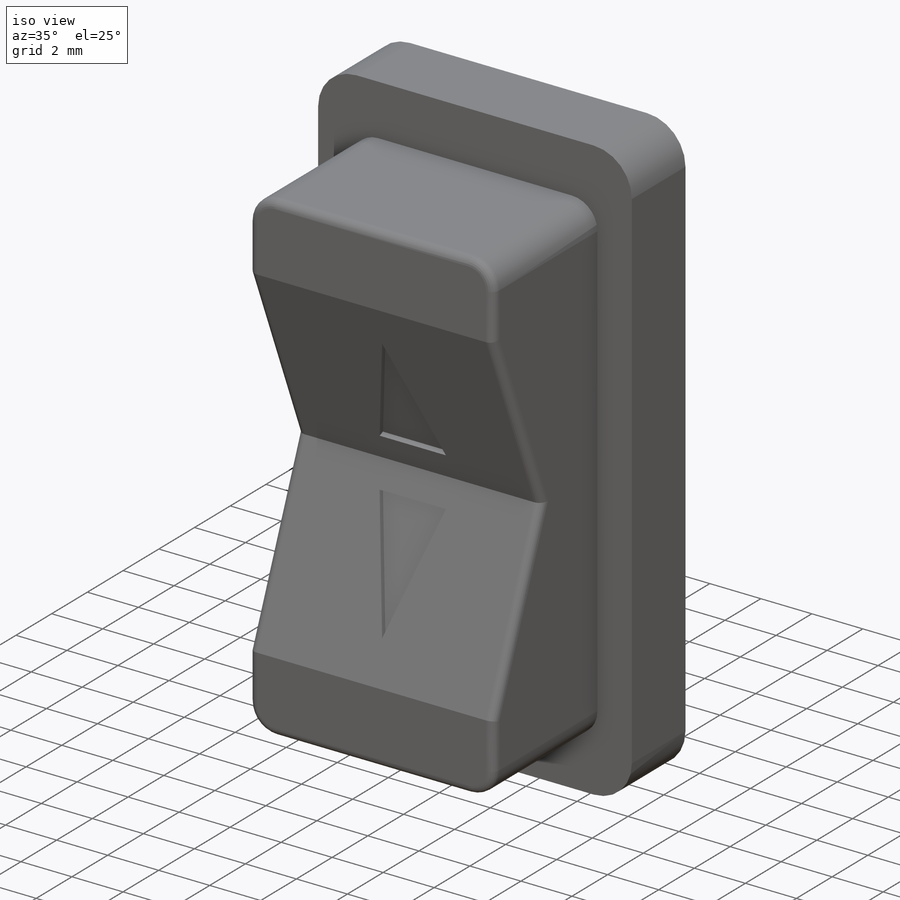
[diagram: iso view]
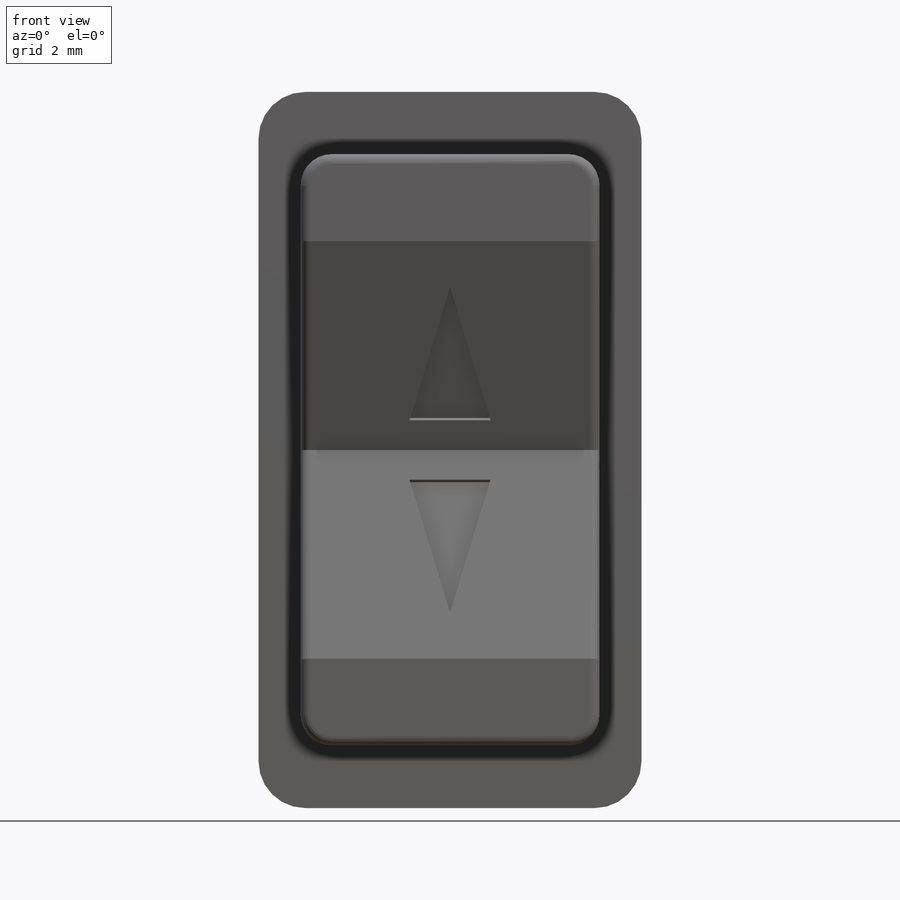
[diagram: front view]
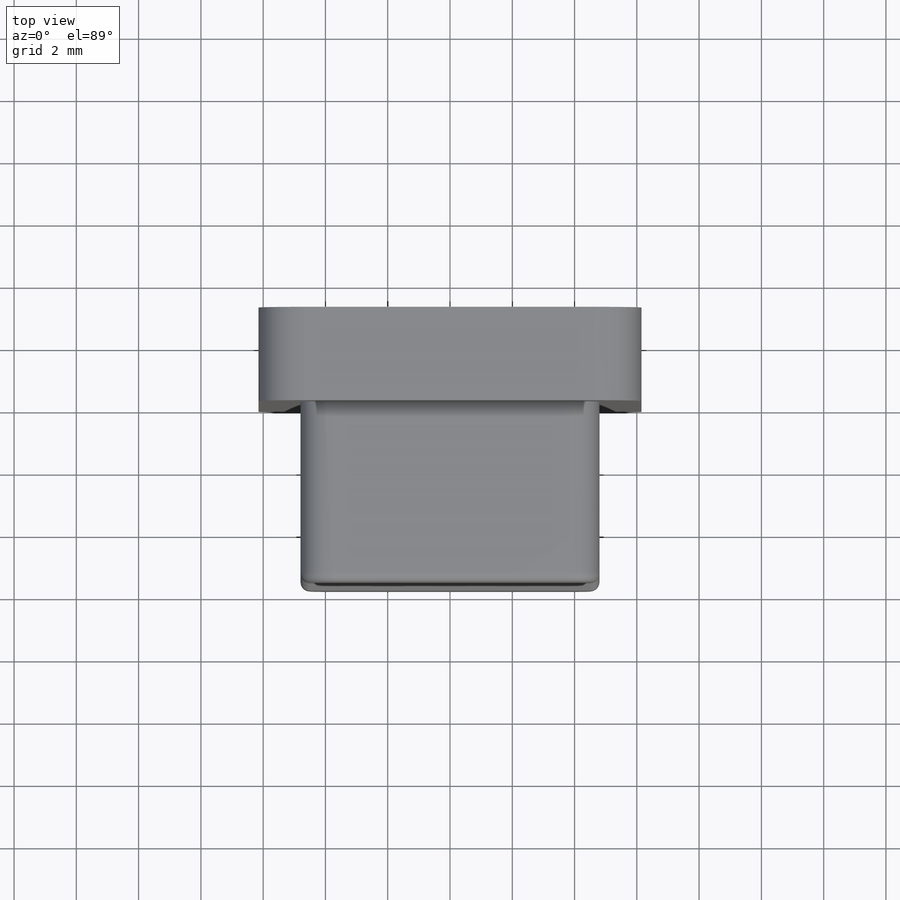
[diagram: top view]
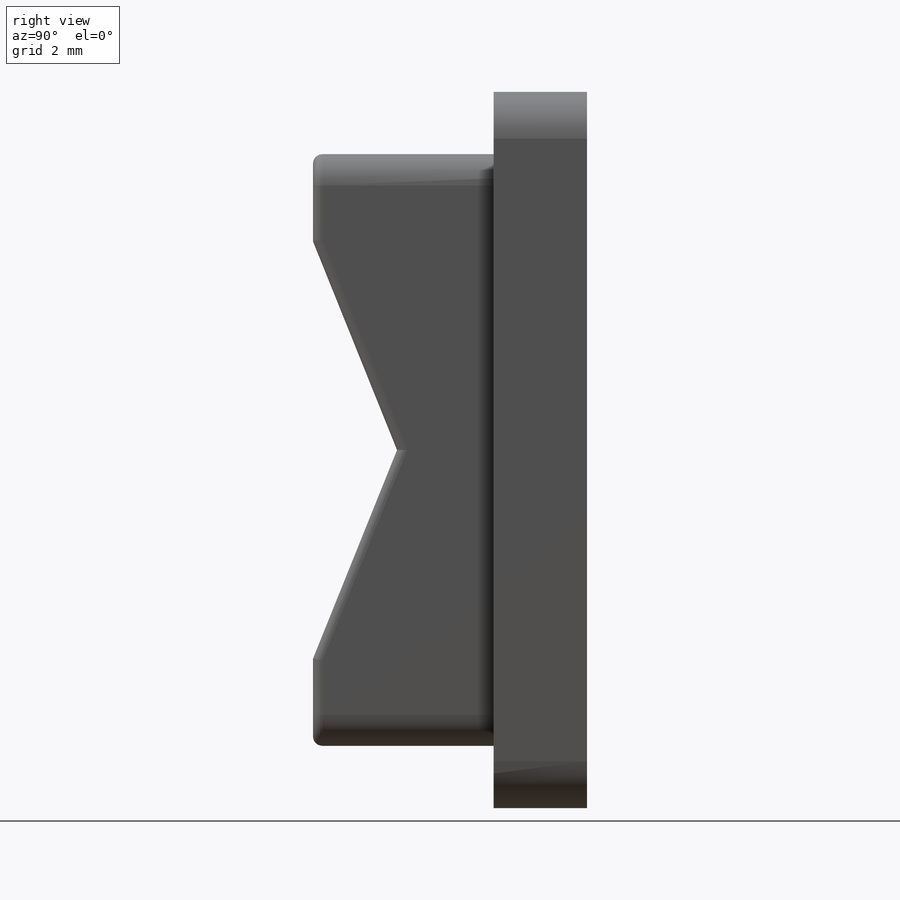
[diagram: right view]
SOLIDWORKS PART (.sldprt)
format: sldprt  version: not decoded by parser v0  size: 254,464 bytes
history: native  units: mm
features: sketch x5, plane x3, cut_extrude x3, extrude x2, fillet x2, material x1 (+9 scaffold rows collapsed)
feature tree (25):
  scaffold x9  (default folders/planes/origin — collapsed)
  material  "PMMA"
  plane  "Přední rovina"
  plane  "Horní rovina"
  plane  "Pravá rovina"
  sketch  "Skica1"  dims[D3=1.0mm D1=9.6mm D2=19.0mm]
  extrude  "Přidat vysunutím1"  Depth=5.8mm
  sketch  "Skica2"  dims[D1=13.4mm D2=2.7mm]
  cut_extrude  "Odebrat vysunutím1"  [1 undecoded]
  fillet  "Zaoblit1"  Radius=0.3mm
  sketch  "Skica3"  dims[D1=4.6mm D2=1.03mm]
  cut_extrude  "Odebrat vysunutím2"  Depth=0.2mm
  sketch  "Skica4"  dims[D1=1.03mm D2=~4.601661mm]
  cut_extrude  "Odebrat vysunutím3"  Depth=0.2mm
  sketch  "Skica5"  dims[D1=12.3mm D2=23.0mm]
  extrude  "Přidat vysunutím2"  Depth=3mm
  fillet  "Zaoblit2"  Radius=1.5mm
decode coverage: 11 of 12 modeling features carry decoded parameters
note: ~ marks probable driven/reference dimensions
note: 1 parameter value undecoded
note: suppression state not decoded; provenance and decode notes live in map.json
